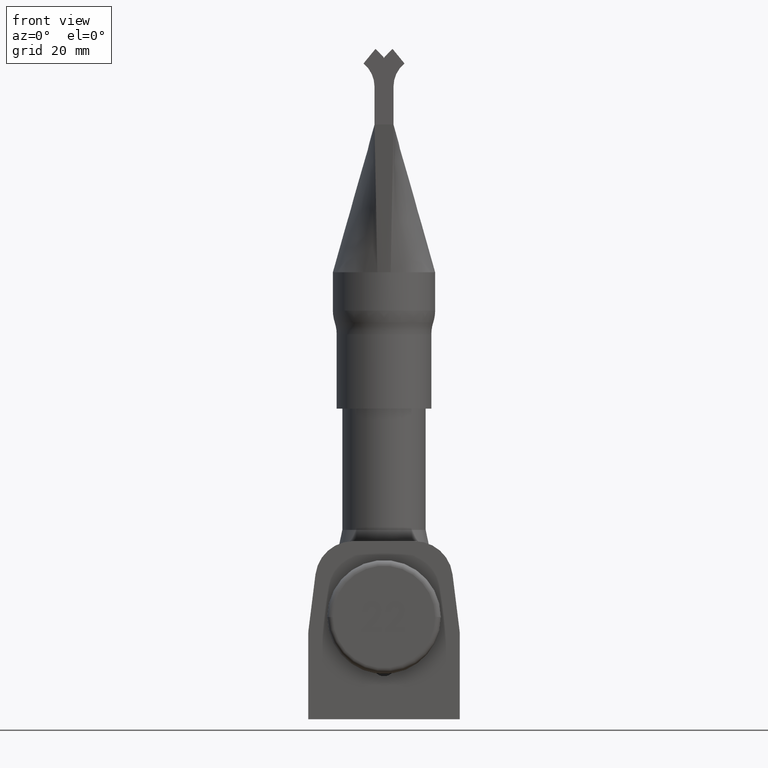
[diagram: clean part render]
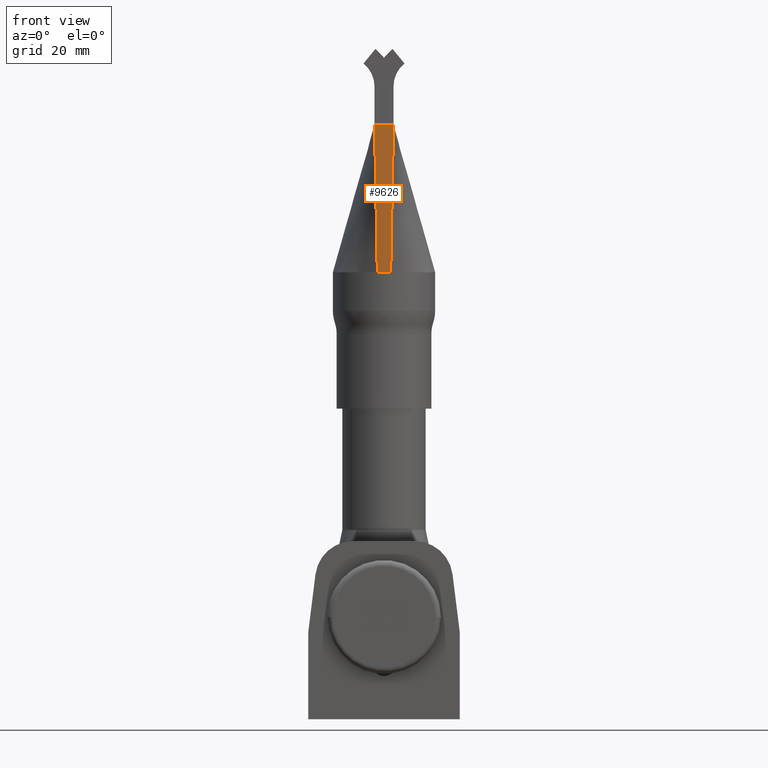
[diagram: same view with one face highlighted and labeled with its STEP entity id]
A machine part, front view. The second image highlights one B-rep face of the part: STEP entity #9626.
In plain terms, the highlighted face is a freeform B-spline surface patch.
Its self-contained STEP definition (entity closure, byte-faithful):
#153 = CARTESIAN_POINT ( 'NONE',  ( 2.524272737694168700, -19.05616913980903600, 75.39000000000001500 ) ) ;
#556 = CARTESIAN_POINT ( 'NONE',  ( -2.500000000000004000, -19.00000000000000000, 75.00000000000001400 ) ) ;
#1118 = CARTESIAN_POINT ( 'NONE',  ( -2.516666666666670600, -19.00000000000000000, 75.00000000000001400 ) ) ;
#1180 = CARTESIAN_POINT ( 'NONE',  ( -2.524105568418024200, -19.05616898664362000, 75.39000000000001500 ) ) ;
#1309 = CARTESIAN_POINT ( 'NONE',  ( 0.5895536644177888900, -13.49950705381344900, 36.00000000000000000 ) ) ;
#1375 = CARTESIAN_POINT ( 'NONE',  ( 2.533666666666664300, -19.00000000000000000, 75.00000000000001400 ) ) ;
#1437 = CARTESIAN_POINT ( 'NONE',  ( 1.174231735457269300, -13.40582785614191900, 35.60999999999999200 ) ) ;
#1508 = CARTESIAN_POINT ( 'NONE',  ( 1.765453492888629200, -13.32691687928691400, 35.60999999999999200 ) ) ;
#1580 = CARTESIAN_POINT ( 'NONE',  ( 1.772892897249468000, -13.38308601909595400, 36.00000000000000000 ) ) ;
#2100 = CARTESIAN_POINT ( 'NONE',  ( -1.761144577779223600, -13.38469859784399900, 36.00000000000000000 ) ) ;
#2112 = DIRECTION ( 'NONE',  ( -1.000000000000000000, -0.0000000000000000000, -0.0000000000000000000 ) ) ;
#2206 = LINE ( 'NONE', #6659, #5851 ) ;
#2467 = EDGE_CURVE ( 'NONE', #13839, #9434, #16147, .T. ) ;
#2542 = EDGE_LOOP ( 'NONE', ( #8978, #11265, #12256, #16197 ) ) ;
#2819 = CARTESIAN_POINT ( 'NONE',  ( -1.796057635166423000, -13.38003802726477400, 36.00000000000000000 ) ) ;
#2958 = CARTESIAN_POINT ( 'NONE',  ( 2.541156834585478000, -19.05618460951631800, 75.39000000000001500 ) ) ;
#3035 = CARTESIAN_POINT ( 'NONE',  ( 1.777159706866391800, -13.32535443885124200, 35.60999999999999200 ) ) ;
#3165 = CARTESIAN_POINT ( 'NONE',  ( 1.179107328835580000, -13.46121569915041300, 36.00000000000000000 ) ) ;
#3659 = LINE ( 'NONE', #556, #7533 ) ;
#4127 = FACE_OUTER_BOUND ( 'NONE', #2542, .T. ) ;
#4365 = CARTESIAN_POINT ( 'NONE',  ( -0.8333333333333383700, -19.00000000000000000, 75.00000000000001400 ) ) ;
#4509 = CARTESIAN_POINT ( 'NONE',  ( 0.8357711300224839300, -19.05500492946186600, 75.39000000000001500 ) ) ;
#4639 = CARTESIAN_POINT ( 'NONE',  ( 2.558040931476787300, -19.05620007922360100, 75.39000000000001500 ) ) ;
#4738 = CARTESIAN_POINT ( 'NONE',  ( -2.130567959856869200, -16.19231649491217000, 55.50000000000000000 ) ) ;
#5745 = CARTESIAN_POINT ( 'NONE',  ( -1.784417063348859900, -13.38156968145129600, 36.00000000000000000 ) ) ;
#5801 = CARTESIAN_POINT ( 'NONE',  ( -2.557539423648340200, -19.05619961972734800, 75.39000000000001500 ) ) ;
#5851 = VECTOR ( 'NONE', #17362, 1000.000000000000100 ) ;
#5943 = CARTESIAN_POINT ( 'NONE',  ( -0.8357711300224939200, -19.05500492946186600, 75.39000000000001500 ) ) ;
#6308 = DIRECTION ( 'NONE',  ( -0.01874855852282893500, -0.1424890447735001600, 0.9896187971501204700 ) ) ;
#6358 = CARTESIAN_POINT ( 'NONE',  ( 1.666666666666662500, -19.00000000000000000, 75.00000000000001400 ) ) ;
#6659 = CARTESIAN_POINT ( 'NONE',  ( 2.130567959856863000, -16.19231649491217300, 55.50000000000000000 ) ) ;
#6776 = LINE ( 'NONE', #4738, #7767 ) ;
#7474 = CARTESIAN_POINT ( 'NONE',  ( 0.5885240618760672100, -13.50000253678934400, 36.00349527898735100 ) ) ;
#7533 = VECTOR ( 'NONE', #2112, 1000.000000000000000 ) ;
#7767 = VECTOR ( 'NONE', #6308, 1000.000000000000200 ) ;
#7850 = CARTESIAN_POINT ( 'NONE',  ( 1.796406852320945300, -13.37999207763918200, 36.00000000000000000 ) ) ;
#8611 = VERTEX_POINT ( 'NONE', #12540 ) ;
#8978 = ORIENTED_EDGE ( 'NONE', *, *, #2467, .T. ) ;
#9073 = CARTESIAN_POINT ( 'NONE',  ( 0.5871158677286334400, -13.44450212435158300, 35.60999999999999200 ) ) ;
#9141 = CARTESIAN_POINT ( 'NONE',  ( -2.533333333333337200, -19.00000000000000000, 75.00000000000001400 ) ) ;
#9400 = CARTESIAN_POINT ( 'NONE',  ( 1.784649874785206600, -13.38153904836756800, 36.00000000000000000 ) ) ;
#9434 = VERTEX_POINT ( 'NONE', #11704 ) ;
#9626 = ADVANCED_FACE ( 'NONE', ( #4127 ), #18393, .T. ) ;
#10382 = CARTESIAN_POINT ( 'NONE',  ( 1.177068060633708300, -13.46148402509858300, 36.00000000808870500 ) ) ;
#10477 = CARTESIAN_POINT ( 'NONE',  ( -1.174231735457274000, -13.40582785614191900, 35.60999999999999200 ) ) ;
#10607 = CARTESIAN_POINT ( 'NONE',  ( -1.772776491531296900, -13.38310133563781800, 36.00000000000000000 ) ) ;
#10679 = CARTESIAN_POINT ( 'NONE',  ( -2.550000000000003800, -19.00000000000000000, 75.00000000000001400 ) ) ;
#11265 = ORIENTED_EDGE ( 'NONE', *, *, #13807, .T. ) ;
#11704 = CARTESIAN_POINT ( 'NONE',  ( 1.761143528652265200, -13.38469061141342700, 36.00000000000000000 ) ) ;
#12239 = CARTESIAN_POINT ( 'NONE',  ( 1.671542260044973200, -19.05538784300849600, 75.39000000000001500 ) ) ;
#12256 = ORIENTED_EDGE ( 'NONE', *, *, #14339, .T. ) ;
#12304 = CARTESIAN_POINT ( 'NONE',  ( 2.507388640802859800, -19.05615367010175400, 75.39000000000001500 ) ) ;
#12540 = CARTESIAN_POINT ( 'NONE',  ( 2.499999999999996400, -19.00000000000000000, 75.00000000000001400 ) ) ;
#13585 = CARTESIAN_POINT ( 'NONE',  ( -1.177067929049564000, -13.46148404233726700, 36.00000000757638200 ) ) ;
#13613 = CARTESIAN_POINT ( 'NONE',  ( -0.5871158677286381100, -13.44450212435158300, 35.60999999999999200 ) ) ;
#13683 = CARTESIAN_POINT ( 'NONE',  ( -1.765337589779943300, -13.32693234899419600, 35.60999999999999200 ) ) ;
#13730 = CARTESIAN_POINT ( 'NONE',  ( -1.761144577779223600, -13.38469859784399900, 36.00000000000000000 ) ) ;
#13753 = CARTESIAN_POINT ( 'NONE',  ( -1.776927900649015300, -13.32538537826581000, 35.60999999999999200 ) ) ;
#13807 = EDGE_CURVE ( 'NONE', #9434, #8611, #2206, .T. ) ;
#13839 = VERTEX_POINT ( 'NONE', #2100 ) ;
#13961 = CARTESIAN_POINT ( 'NONE',  ( 2.516833333333330400, -19.00000000000000000, 75.00000000000001400 ) ) ;
#14316 = VERTEX_POINT ( 'NONE', #19096 ) ;
#14339 = EDGE_CURVE ( 'NONE', #8611, #14316, #3659, .T. ) ;
#15175 = CARTESIAN_POINT ( 'NONE',  ( -2.500000000000004000, -19.00000000000000000, 75.00000000000001400 ) ) ;
#15309 = CARTESIAN_POINT ( 'NONE',  ( -1.671542260044982100, -19.05538784300849600, 75.39000000000001500 ) ) ;
#15563 = CARTESIAN_POINT ( 'NONE',  ( 1.761135919713729300, -13.38463298982434100, 36.00000000000000000 ) ) ;
#15632 = CARTESIAN_POINT ( 'NONE',  ( 1.753747278910866600, -13.32847931972258400, 35.60999999999999200 ) ) ;
#16147 = B_SPLINE_CURVE_WITH_KNOTS ( 'NONE', 3,
 ( #13730, #13585, #16748, #7474, #10382, #18173 ),
 .UNSPECIFIED., .F., .F.,
 ( 4, 2, 4 ),
 ( 2.168404344971008600E-019, 0.001765403049132492600, 0.003530806098264984700 ),
 .UNSPECIFIED. ) ;
#16197 = ORIENTED_EDGE ( 'NONE', *, *, #16275, .F. ) ;
#16275 = EDGE_CURVE ( 'NONE', #13839, #14316, #6776, .T. ) ;
#16636 = CARTESIAN_POINT ( 'NONE',  ( -2.540822496033182400, -19.05618430318548600, 75.39000000000001500 ) ) ;
#16702 = CARTESIAN_POINT ( 'NONE',  ( -1.179107328835584900, -13.46121569915041300, 36.00000000000000000 ) ) ;
#16748 = CARTESIAN_POINT ( 'NONE',  ( -0.5886404376218143900, -13.49999746295984700, 36.00349496767640300 ) ) ;
#16771 = CARTESIAN_POINT ( 'NONE',  ( -1.666666666666671400, -19.00000000000000000, 75.00000000000001400 ) ) ;
#16845 = CARTESIAN_POINT ( 'NONE',  ( -1.761135919713734000, -13.38463298982434000, 36.00000000000000000 ) ) ;
#17122 = CARTESIAN_POINT ( 'NONE',  ( 1.788865920844154400, -13.32379199841557200, 35.60999999999999200 ) ) ;
#17182 = CARTESIAN_POINT ( 'NONE',  ( 2.499999999999996900, -19.00000000000000000, 75.00000000000001400 ) ) ;
#17362 = DIRECTION ( 'NONE',  ( 0.01874855852282889000, -0.1424890447735001300, 0.9896187971501205800 ) ) ;
#18132 = CARTESIAN_POINT ( 'NONE',  ( -0.5895536644177935500, -13.49950705381344900, 36.00000000000000000 ) ) ;
#18173 = CARTESIAN_POINT ( 'NONE',  ( 1.761143528652265200, -13.38469061141342700, 36.00000000000000000 ) ) ;
#18197 = CARTESIAN_POINT ( 'NONE',  ( -1.788518211518087100, -13.32383840753742300, 35.60999999999999200 ) ) ;
#18393 = B_SPLINE_SURFACE_WITH_KNOTS ( 'NONE', 3, 1, ( 
 ( #18197, #2819, #10679, #5801 ),
 ( #13753, #5745, #9141, #16636 ),
 ( #13683, #10607, #1118, #1180 ),
 ( #19717, #16845, #15175, #19785 ),
 ( #10477, #16702, #16771, #15309 ),
 ( #13613, #18132, #4365, #5943 ),
 ( #9073, #1309, #20002, #4509 ),
 ( #1437, #3165, #6358, #12239 ),
 ( #15632, #15563, #17182, #12304 ),
 ( #1508, #1580, #13961, #153 ),
 ( #3035, #9400, #1375, #2958 ),
 ( #17122, #7850, #18696, #4639 ) ),
 .UNSPECIFIED., .F., .F., .F.,
 ( 4, 3, 2, 3, 4 ),
 ( 2, 1, 1, 2 ),
 ( -0.01000000000000000000, 0.0000000000000000000, 0.5000000000000000000, 1.000000000000000000, 1.010100000000000000 ),
 ( -0.01000000000000000000, 0.0000000000000000000, 1.000000000000000000, 1.010000000000000000 ),
 .UNSPECIFIED. ) ;
#18696 = CARTESIAN_POINT ( 'NONE',  ( 2.550499999999997800, -19.00000000000000000, 75.00000000000001400 ) ) ;
#19096 = CARTESIAN_POINT ( 'NONE',  ( -2.500000000000004000, -19.00000000000000000, 75.00000000000001400 ) ) ;
#19717 = CARTESIAN_POINT ( 'NONE',  ( -1.753747278910871200, -13.32847931972258200, 35.60999999999999200 ) ) ;
#19785 = CARTESIAN_POINT ( 'NONE',  ( -2.507388640802866500, -19.05615367010175400, 75.39000000000001500 ) ) ;
#20002 = CARTESIAN_POINT ( 'NONE',  ( 0.8333333333333284900, -19.00000000000000000, 75.00000000000001400 ) ) ;